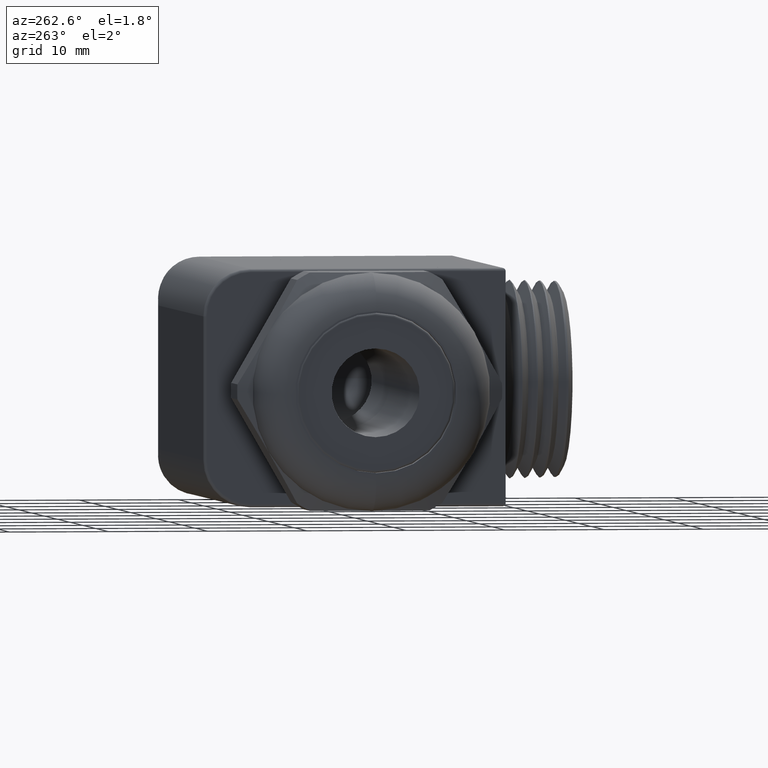
[diagram: clean part render]
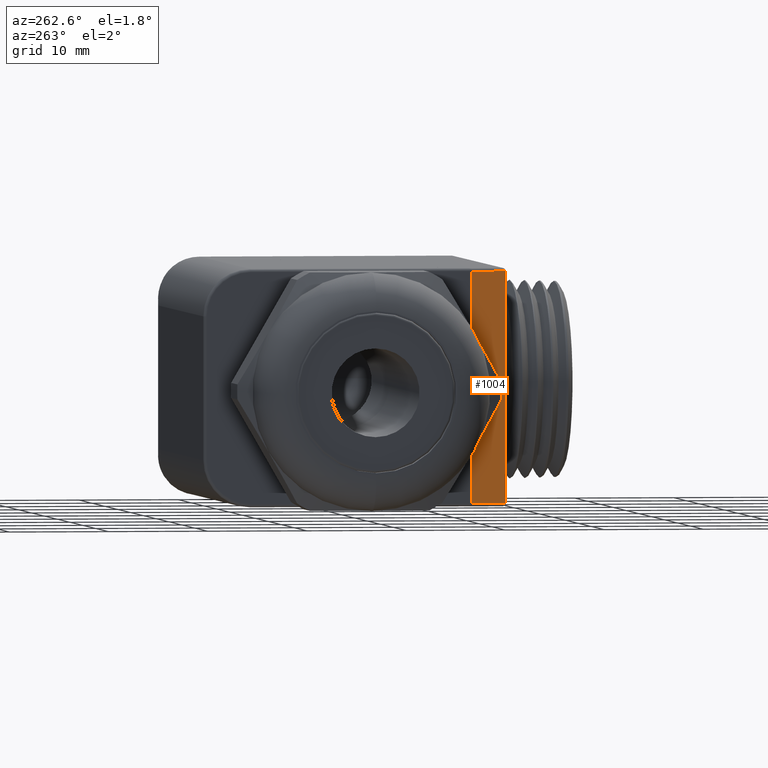
[diagram: same view with one face highlighted and labeled with its STEP entity id]
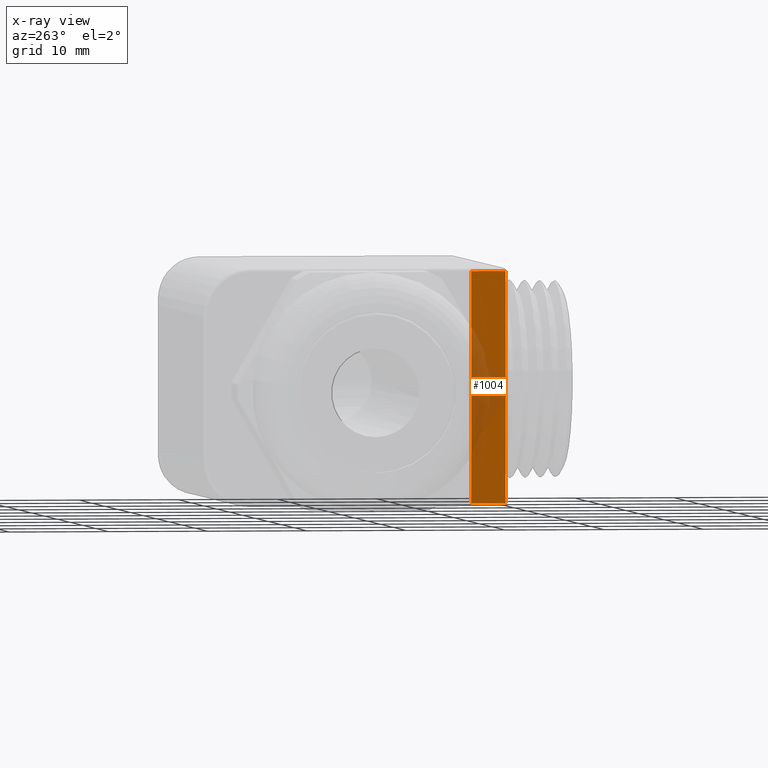
[diagram: x-ray of the same camera — body ghosted, the highlighted face saturated]
A machine part, auxiliary view. The second image highlights one B-rep face of the part: STEP entity #1004.
The next image is the same camera in x-ray: the body ghosted, the highlighted face saturated — about 28% of this face is hidden behind the body in this view.
In plain terms, the highlighted planar face has unit normal (1, 0, 0).
Its self-contained STEP definition (entity closure, byte-faithful):
#875 = EDGE_CURVE ( 'NONE', #878, #879, #3151, .T. ) ;
#878 = VERTEX_POINT ( 'NONE', #3124 ) ;
#879 = VERTEX_POINT ( 'NONE', #3123 ) ;
#1004 = ADVANCED_FACE ( 'NONE', ( #3204 ), #3203, .F. ) ;
#1005 = EDGE_LOOP ( 'NONE', ( #1006, #1007, #1009, #1010 ) ) ;
#1006 = ORIENTED_EDGE ( 'NONE', *, *, #1330, .F. ) ;
#1007 = ORIENTED_EDGE ( 'NONE', *, *, #1008, .T. ) ;
#1008 = EDGE_CURVE ( 'NONE', #1328, #878, #3392, .T. ) ;
#1009 = ORIENTED_EDGE ( 'NONE', *, *, #875, .T. ) ;
#1010 = ORIENTED_EDGE ( 'NONE', *, *, #1011, .T. ) ;
#1011 = EDGE_CURVE ( 'NONE', #879, #1331, #3191, .T. ) ;
#1328 = VERTEX_POINT ( 'NONE', #3957 ) ;
#1330 = EDGE_CURVE ( 'NONE', #1328, #1331, #3979, .T. ) ;
#1331 = VERTEX_POINT ( 'NONE', #3956 ) ;
#3123 = CARTESIAN_POINT ( 'NONE',  ( 1.665464641198555300E-017, -0.6000000000000002000, 0.4573446327683599600 ) ) ;
#3124 = CARTESIAN_POINT ( 'NONE',  ( 1.665464641198555300E-017, -0.6000000000000002000, -0.4573446327683624600 ) ) ;
#3148 = DIRECTION ( 'NONE',  ( 0.0000000000000000000, 0.0000000000000000000, 1.000000000000000000 ) ) ;
#3149 = VECTOR ( 'NONE', #3148, 39.37007874015748100 ) ;
#3150 = CARTESIAN_POINT ( 'NONE',  ( 1.665464641198555300E-017, -0.6000000000000002000, -2.444493352736341900 ) ) ;
#3151 = LINE ( 'NONE', #3150, #3149 ) ;
#3188 = DIRECTION ( 'NONE',  ( 0.0000000000000000000, 1.000000000000000000, 0.0000000000000000000 ) ) ;
#3189 = VECTOR ( 'NONE', #3188, 39.37007874015748100 ) ;
#3190 = CARTESIAN_POINT ( 'NONE',  ( 0.0000000000000000000, -0.4639999999999902000, 0.4573446327683613500 ) ) ;
#3191 = LINE ( 'NONE', #3190, #3189 ) ;
#3192 = DIRECTION ( 'NONE',  ( 0.0000000000000000000, -1.000000000000000000, 0.0000000000000000000 ) ) ;
#3193 = VECTOR ( 'NONE', #3192, 39.37007874015748100 ) ;
#3203 = PLANE ( 'NONE',  #3396 ) ;
#3204 = FACE_OUTER_BOUND ( 'NONE', #1005, .T. ) ;
#3391 = CARTESIAN_POINT ( 'NONE',  ( 0.0000000000000000000, -0.4639999999999902000, -0.4573446327683613500 ) ) ;
#3392 = LINE ( 'NONE', #3391, #3193 ) ;
#3393 = DIRECTION ( 'NONE',  ( 0.0000000000000000000, 0.0000000000000000000, -1.000000000000000000 ) ) ;
#3394 = DIRECTION ( 'NONE',  ( 1.000000000000000000, 0.0000000000000000000, 0.0000000000000000000 ) ) ;
#3395 = CARTESIAN_POINT ( 'NONE',  ( 0.0000000000000000000, -0.4639999999999902000, 2.364919523357121200 ) ) ;
#3396 = AXIS2_PLACEMENT_3D ( 'NONE', #3395, #3394, #3393 ) ;
#3929 = VECTOR ( 'NONE', #3966, 39.37007874015748100 ) ;
#3956 = CARTESIAN_POINT ( 'NONE',  ( 0.0000000000000000000, -0.4639999999999902000, 0.4573446327683613500 ) ) ;
#3957 = CARTESIAN_POINT ( 'NONE',  ( 0.0000000000000000000, -0.4639999999999902000, -0.4573446327683613500 ) ) ;
#3966 = DIRECTION ( 'NONE',  ( 0.0000000000000000000, 0.0000000000000000000, 1.000000000000000000 ) ) ;
#3979 = LINE ( 'NONE', #3992, #3929 ) ;
#3992 = CARTESIAN_POINT ( 'NONE',  ( 0.0000000000000000000, -0.4639999999999902000, 2.364919523357121200 ) ) ;